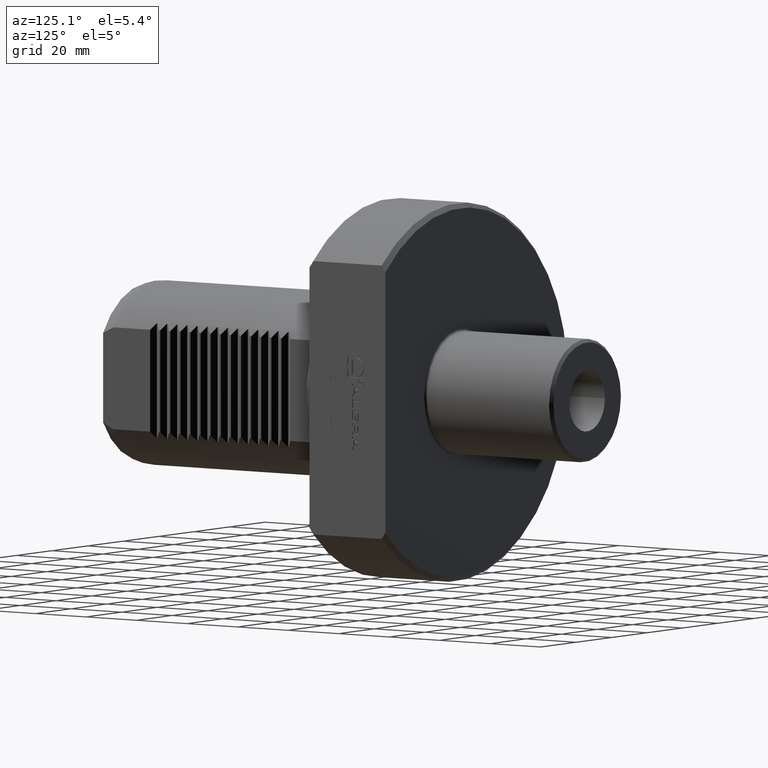
[diagram: clean part render]
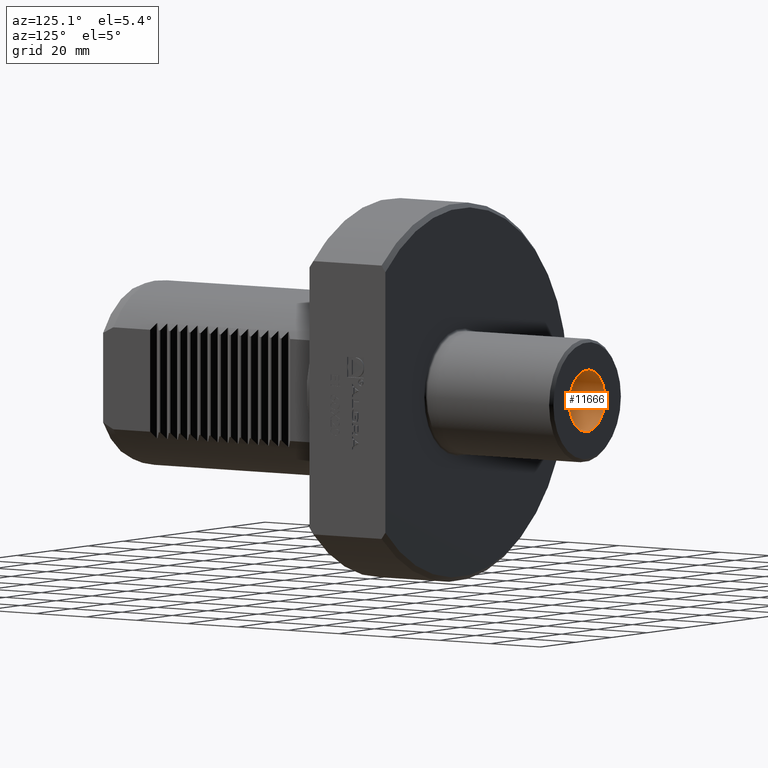
[diagram: same view with one face highlighted and labeled with its STEP entity id]
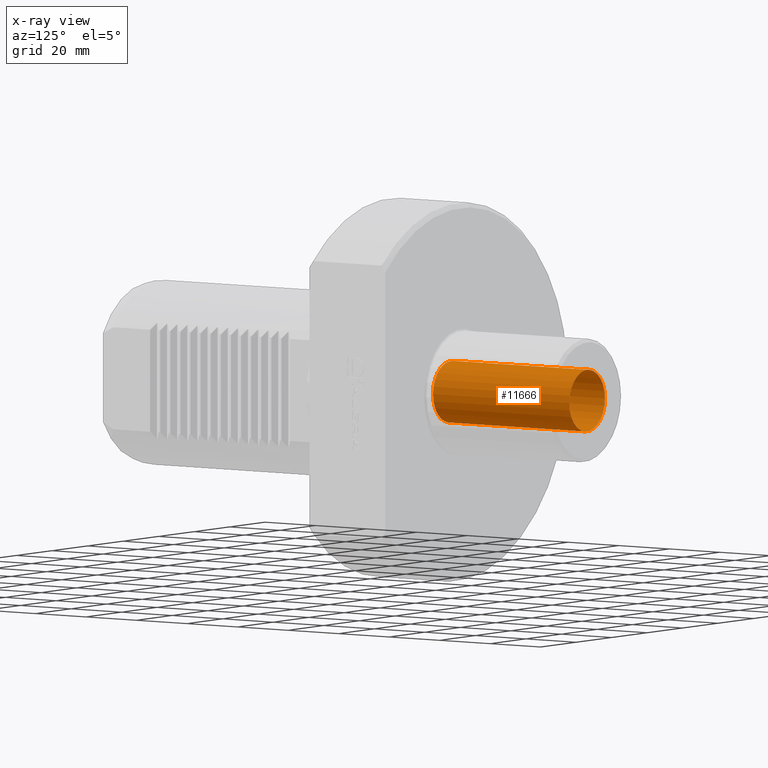
[diagram: x-ray of the same camera — body ghosted, the highlighted face saturated]
A machine part, auxiliary view. The second image highlights one B-rep face of the part: STEP entity #11666.
The next image is the same camera in x-ray: the body ghosted, the highlighted face saturated — about 0% of this face is hidden behind the body in this view.
In plain terms, the highlighted cylindrical surface (bore or boss wall) has radius 10 mm, axis along (-0, 1, -0).
Its self-contained STEP definition (entity closure, byte-faithful):
#481 = CIRCLE ( 'NONE', #5745, 10.00000000000000000 ) ;
#1254 = AXIS2_PLACEMENT_3D ( 'NONE', #7237, #12849, #1789 ) ;
#1592 = CARTESIAN_POINT ( 'NONE',  ( -10.00000000000001066, 80.00000000000000000, 0.000000000000000000 ) ) ;
#1789 = DIRECTION ( 'NONE',  ( -1.000000000000000000, 0.000000000000000000, 0.000000000000000000 ) ) ;
#2565 = EDGE_CURVE ( 'NONE', #12292, #12292, #5618, .T. ) ;
#3499 = FACE_OUTER_BOUND ( 'NONE', #12336, .T. ) ;
#3704 = DIRECTION ( 'NONE',  ( -1.000000000000000000, 0.000000000000000000, 0.000000000000000000 ) ) ;
#5519 = DIRECTION ( 'NONE',  ( -1.000000000000000000, 0.000000000000000000, 0.000000000000000000 ) ) ;
#5618 = CIRCLE ( 'NONE', #1254, 10.00000000000000000 ) ;
#5745 = AXIS2_PLACEMENT_3D ( 'NONE', #8276, #13544, #3704 ) ;
#6643 = ORIENTED_EDGE ( 'NONE', *, *, #12576, .T. ) ;
#7237 = CARTESIAN_POINT ( 'NONE',  ( -3.367965056756741843E-15, 26.00000000000000355, 0.000000000000000000 ) ) ;
#8276 = CARTESIAN_POINT ( 'NONE',  ( -1.036296940540536146E-14, 80.00000000000000000, 0.000000000000000000 ) ) ;
#8565 = ORIENTED_EDGE ( 'NONE', *, *, #2565, .F. ) ;
#8931 = FACE_OUTER_BOUND ( 'NONE', #12607, .T. ) ;
#8996 = DIRECTION ( 'NONE',  ( -1.295371175675670527E-16, 1.000000000000000000, -0.000000000000000000 ) ) ;
#9096 = VERTEX_POINT ( 'NONE', #1592 ) ;
#10056 = AXIS2_PLACEMENT_3D ( 'NONE', #12047, #8996, #5519 ) ;
#11303 = CARTESIAN_POINT ( 'NONE',  ( -10.00000000000000355, 26.00000000000000355, 0.000000000000000000 ) ) ;
#11666 = ADVANCED_FACE ( 'NONE', ( #3499, #8931 ), #13278, .F. ) ;
#12047 = CARTESIAN_POINT ( 'NONE',  ( -3.367965056756741843E-15, 26.00000000000000355, 0.000000000000000000 ) ) ;
#12292 = VERTEX_POINT ( 'NONE', #11303 ) ;
#12336 = EDGE_LOOP ( 'NONE', ( #8565 ) ) ;
#12576 = EDGE_CURVE ( 'NONE', #9096, #9096, #481, .T. ) ;
#12607 = EDGE_LOOP ( 'NONE', ( #6643 ) ) ;
#12849 = DIRECTION ( 'NONE',  ( -1.295371175675670281E-16, 1.000000000000000000, 0.000000000000000000 ) ) ;
#13278 = CYLINDRICAL_SURFACE ( 'NONE', #10056, 10.00000000000000000 ) ;
#13544 = DIRECTION ( 'NONE',  ( -1.295371175675670281E-16, 1.000000000000000000, 0.000000000000000000 ) ) ;